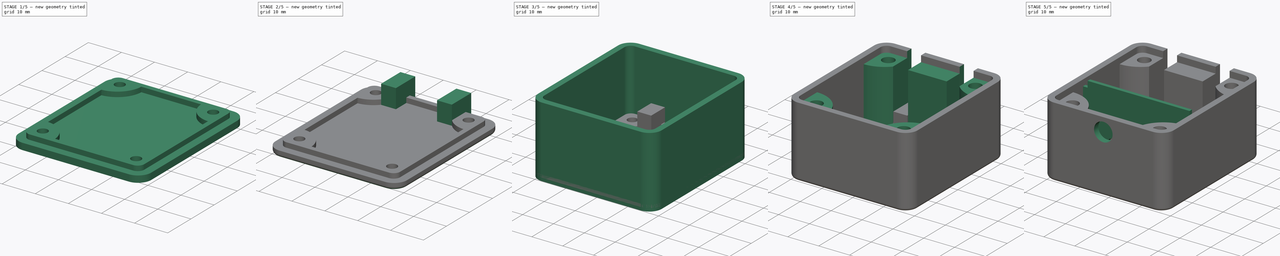
[diagram: build sequence overview — one tinted view per stage of 5, left to right]
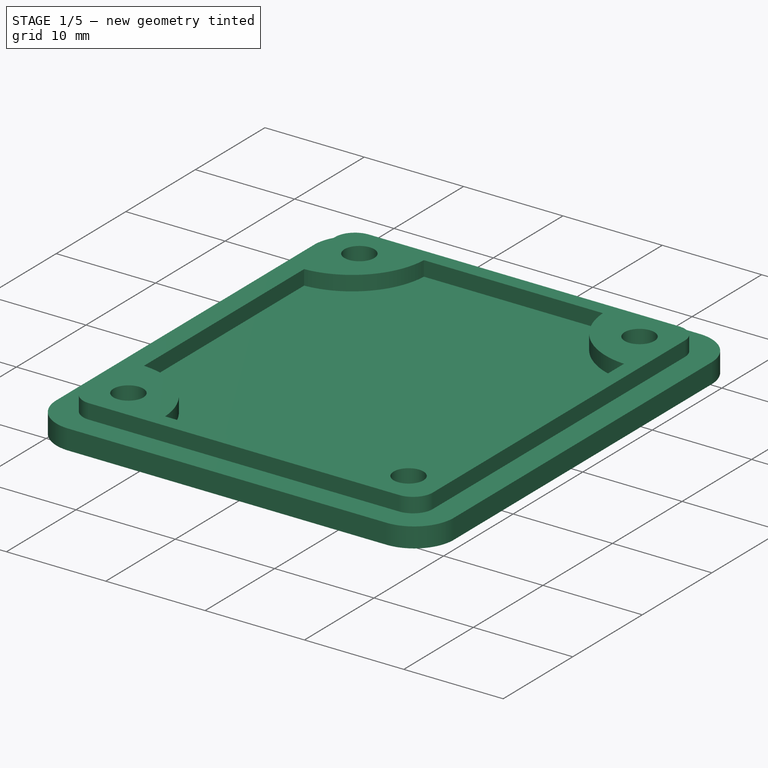
[diagram: stage 1 of 5 — iso view after this stage's code; geometry added in this stage tinted green]
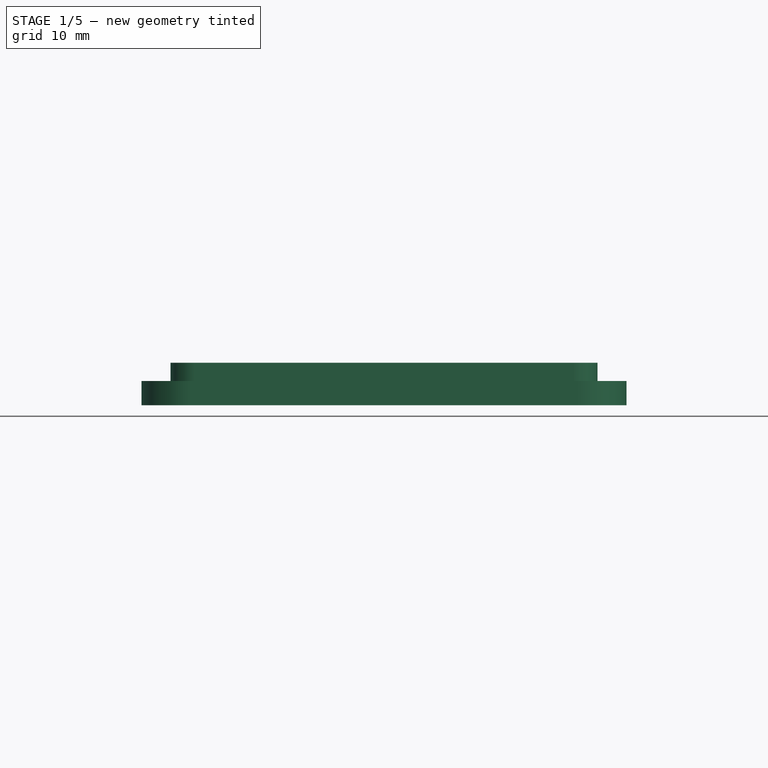
[diagram: stage 1 of 5 — front view after this stage's code; geometry added in this stage tinted green]
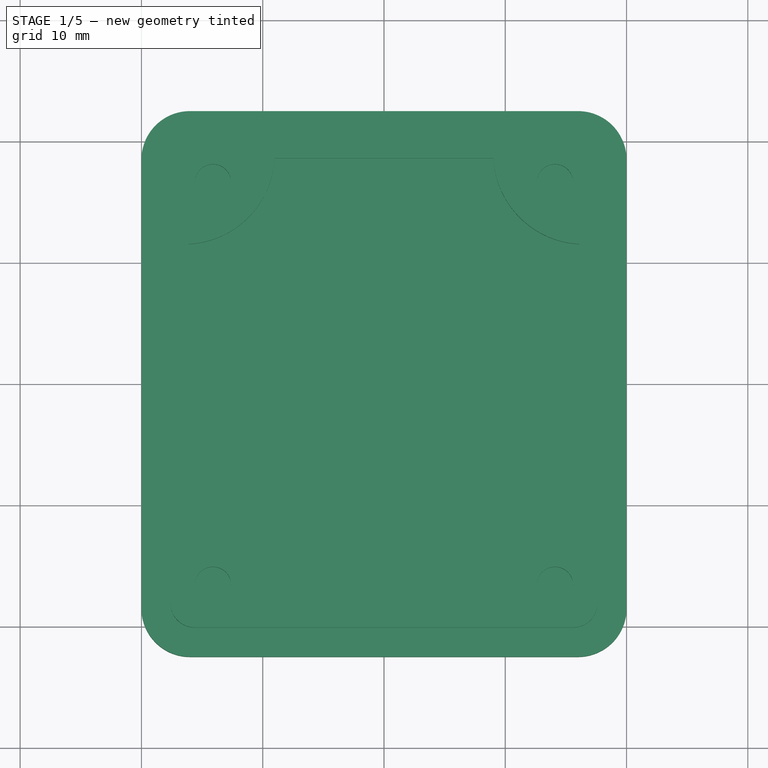
[diagram: stage 1 of 5 — top view after this stage's code; geometry added in this stage tinted green]
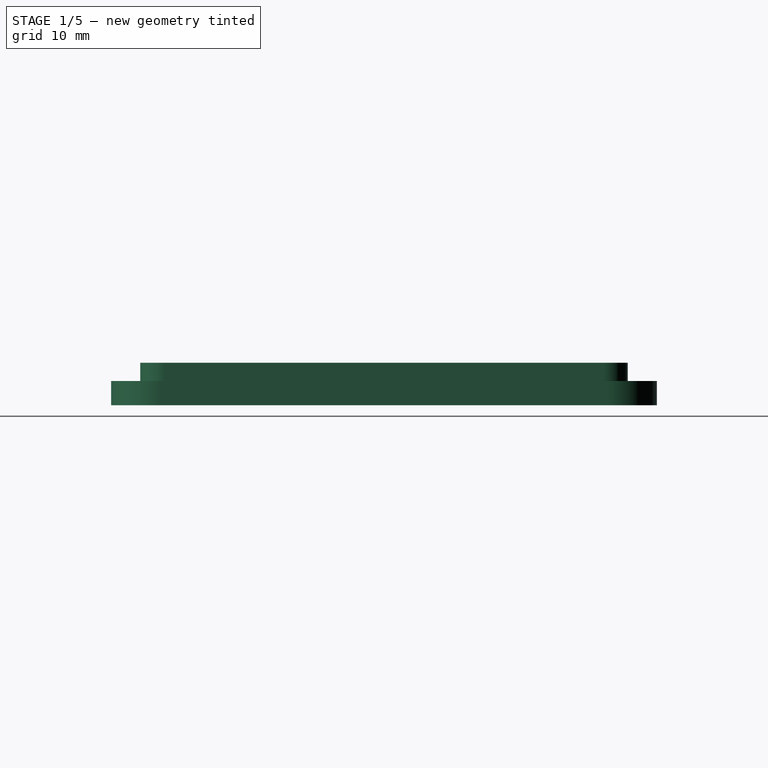
[diagram: stage 1 of 5 — right view after this stage's code; geometry added in this stage tinted green]
FCSTD DOCUMENT  (FreeCAD 0.21R33771 (Git))
Label: Project_Box_Simple_New
License: All rights reserved
LicenseURL: http://en.wikipedia.org/wiki/All_rights_reserved
objects: Sketcher::SketchObject×18, PartDesign::Pad×13, PartDesign::Pocket×7, PartDesign::Mirrored×6, PartDesign::MultiTransform×3, PartDesign::Body×3, App::Part×3, PartDesign::Fillet×2, Part::Part2DObjectPython×2, Spreadsheet::Sheet×1, PartDesign::Chamfer×1
note: 78 computed .brp shape members not serialized (recipe doc carries the construction recipe); baked Part::Feature solids carry a one-line shape summary decoded from their .brp

FEATURE [Sketcher::SketchObject] Sketch003  label="Main Lid Sketch"
  FullyConstrained = true
  MapMode = 5
  Support = -> [XY_Plane003]
  expr: Constraints[15] = <<p>>.box_outer_radius
  expr: Constraints[17] = <<p>>.box_outer_length / 2
  expr: Constraints[18] = <<p>>.box_outer_width / 2
  sketch-geometry (8):
    g0: LineSegment StartX=-16 StartY=22.5 StartZ=0 EndX=16 EndY=22.5 EndZ=0
    g1: LineSegment StartX=20 StartY=18.5 StartZ=0 EndX=20 EndY=-18.5 EndZ=0
    g2: LineSegment StartX=16 StartY=-22.5 StartZ=0 EndX=-16 EndY=-22.5 EndZ=0
    g3: LineSegment StartX=-20 StartY=-18.5 StartZ=0 EndX=-20 EndY=18.5 EndZ=0
    g4: ArcOfCircle CenterX=-16 CenterY=18.5 CenterZ=0 NormalX=0 NormalY=0 NormalZ=1 AngleXU=0 Radius=4 StartAngle=1.5708 EndAngle=3.14159
    g5: ArcOfCircle CenterX=16 CenterY=18.5 CenterZ=0 NormalX=0 NormalY=0 NormalZ=1 AngleXU=0 Radius=4 StartAngle=0 EndAngle=1.5708
    g6: ArcOfCircle CenterX=16 CenterY=-18.5 CenterZ=0 NormalX=0 NormalY=0 NormalZ=1 AngleXU=0 Radius=4 StartAngle=4.71239 EndAngle=6.28319
    g7: ArcOfCircle CenterX=-16 CenterY=-18.5 CenterZ=0 NormalX=0 NormalY=0 NormalZ=1 AngleXU=0 Radius=4 StartAngle=3.14159 EndAngle=4.71239
  constraints (19):
    c: Horizontal(g0)
    c: Horizontal(g2)
    c: Vertical(g1)
    c: Vertical(g3)
    c: Tangent(g0,g4) = 1.5708
    c: Tangent(g3,g4) = 1.5708
    c: Tangent(g0,g5) = 1.5708
    c: Tangent(g1,g5) = 1.5708
    c: Tangent(g1,g6) = 1.5708
    c: Tangent(g2,g6) = 1.5708
    c: Tangent(g2,g7) = 1.5708
    c: Tangent(g3,g7) = 1.5708
    c: Equal(g4,g5)
    c: Equal(g5,g6)
    c: Equal(g6,g7)
    c: Radius(g5) = 4
    c: Symmetric(g4,g6,g-1)
    c: DistanceY(g-1,g0) = 22.5
    c: DistanceX(g3,g-1) = 20
FEATURE [PartDesign::Pad] Pad002  label="Main Outer Lid"
  Direction = (0,0,1)
  Length = 2
  Length2 = 10
  Profile = -> Sketch003
  ReferenceAxis = -> Sketch003 [N_Axis]
  Type = 0
  expr: Length = <<p>>.box_wall_thickness
FEATURE [Sketcher::SketchObject] Sketch004  label="Main Inner Ring Sketch"
  FullyConstrained = true
  MapMode = 5
  Placement = pos=(0,0,2) rot=(0,0,1;0rad)
  Support = -> [Pad002]
  expr: Constraints[15] = <<p>>.box_inner_radius
  expr: Constraints[17] = <<p>>.box_inner_width / 2 - <<p>>.box_wall_clearance
  expr: Constraints[18] = <<p>>.box_inner_length / 2 - <<p>>.box_wall_clearance
  sketch-geometry (8):
    g0: LineSegment StartX=-15.6 StartY=20.1 StartZ=0 EndX=15.6 EndY=20.1 EndZ=0
    g1: LineSegment StartX=17.6 StartY=18.1 StartZ=0 EndX=17.6 EndY=-18.1 EndZ=0
    g2: LineSegment StartX=15.6 StartY=-20.1 StartZ=0 EndX=-15.6 EndY=-20.1 EndZ=0
    g3: LineSegment StartX=-17.6 StartY=-18.1 StartZ=0 EndX=-17.6 EndY=18.1 EndZ=0
    g4: ArcOfCircle CenterX=-15.6 CenterY=18.1 CenterZ=0 NormalX=0 NormalY=0 NormalZ=1 AngleXU=0 Radius=2 StartAngle=1.5708 EndAngle=3.14159
    g5: ArcOfCircle CenterX=15.6 CenterY=18.1 CenterZ=0 NormalX=0 NormalY=0 NormalZ=1 AngleXU=0 Radius=2 StartAngle=-2.7e-15 EndAngle=1.5708
    g6: ArcOfCircle CenterX=15.6 CenterY=-18.1 CenterZ=0 NormalX=0 NormalY=0 NormalZ=1 AngleXU=0 Radius=2 StartAngle=4.71239 EndAngle=6.28319
    g7: ArcOfCircle CenterX=-15.6 CenterY=-18.1 CenterZ=0 NormalX=0 NormalY=0 NormalZ=1 AngleXU=0 Radius=2 StartAngle=3.14159 EndAngle=4.71239
  constraints (19):
    c: Horizontal(g0)
    c: Horizontal(g2)
    c: Vertical(g1)
    c: Vertical(g3)
    c: Tangent(g3,g4) = 1.5708
    c: Tangent(g0,g4) = 1.5708
    c: Tangent(g0,g5) = 1.5708
    c: Tangent(g1,g5) = 1.5708
    c: Tangent(g1,g6) = 1.5708
    c: Tangent(g2,g6) = 1.5708
    c: Tangent(g2,g7) = 1.5708
    c: Tangent(g3,g7) = 1.5708
    c: Equal(g4,g5)
    c: Equal(g5,g6)
    c: Equal(g6,g7)
    c: Radius(g5) = 2
    c: Symmetric(g4,g6,g-1)
    c: DistanceX(g3,g-1) = 17.6
    c: DistanceY(g-1,g0) = 20.1
FEATURE [PartDesign::Pad] Pad003  label="Main Inner Ring"
  BaseFeature = -> Pad002
  Direction = (0,0,1)
  Length = 1.5
  Length2 = 10
  Profile = -> Sketch004
  ReferenceAxis = -> Sketch004 [N_Axis]
  Type = 0
  expr: Length = Spreadsheet.lid_ridge_size
FEATURE [Sketcher::SketchObject] Sketch005  label="Main Ring Pocket Sketch"
  FullyConstrained = true
  MapMode = 5
  Placement = pos=(0,0,3.5) rot=(0,0,1;0rad)
  Support = -> [Pad003]
  expr: Constraints[15] = <<p>>.box_inner_radius / 2
  expr: Constraints[17] = <<p>>.box_inner_length / 2 - <<p>>.box_wall_clearance - Spreadsheet.lid_ridge_size
  expr: Constraints[18] = <<p>>.box_inner_width / 2 - <<p>>.box_wall_clearance - Spreadsheet.lid_ridge_size
  sketch-geometry (8):
    g0: LineSegment StartX=-15.1 StartY=18.6 StartZ=0 EndX=15.1 EndY=18.6 EndZ=0
    g1: LineSegment StartX=16.1 StartY=17.6 StartZ=0 EndX=16.1 EndY=-17.6 EndZ=0
    g2: LineSegment StartX=15.1 StartY=-18.6 StartZ=0 EndX=-15.1 EndY=-18.6 EndZ=0
    g3: LineSegment StartX=-16.1 StartY=-17.6 StartZ=0 EndX=-16.1 EndY=17.6 EndZ=0
    g4: ArcOfCircle CenterX=-15.1 CenterY=17.6 CenterZ=0 NormalX=0 NormalY=0 NormalZ=1 AngleXU=0 Radius=1 StartAngle=1.5708 EndAngle=3.14159
    g5: ArcOfCircle CenterX=15.1 CenterY=17.6 CenterZ=0 NormalX=0 NormalY=0 NormalZ=1 AngleXU=0 Radius=1 StartAngle=0 EndAngle=1.5708
    g6: ArcOfCircle CenterX=15.1 CenterY=-17.6 CenterZ=0 NormalX=0 NormalY=0 NormalZ=1 AngleXU=0 Radius=1 StartAngle=4.71239 EndAngle=6.28319
    g7: ArcOfCircle CenterX=-15.1 CenterY=-17.6 CenterZ=0 NormalX=0 NormalY=0 NormalZ=1 AngleXU=0 Radius=1 StartAngle=3.14159 EndAngle=4.71239
  constraints (19):
    c: Horizontal(g0)
    c: Horizontal(g2)
    c: Vertical(g1)
    c: Vertical(g3)
    c: Tangent(g3,g4) = 1.5708
    c: Tangent(g0,g4) = 1.5708
    c: Tangent(g0,g5) = 1.5708
    c: Tangent(g1,g5) = 1.5708
    c: Tangent(g1,g6) = 1.5708
    c: Tangent(g2,g6) = 1.5708
    c: Tangent(g2,g7) = 1.5708
    c: Tangent(g3,g7) = 1.5708
    c: Equal(g4,g5)
    c: Equal(g5,g6)
    c: Equal(g6,g7)
    c: Radius(g5) = 1
    c: Symmetric(g4,g6,g-1)
    c: DistanceY(g-1,g0) = 18.6
    c: DistanceX(g3,g-1) = 16.1
FEATURE [PartDesign::Pocket] Pocket001  label="Main Ring Pocket"
  BaseFeature = -> Pad003
  Direction = (0,0,-1)
  Length = 1.5
  Length2 = 5
  Profile = -> Sketch005
  ReferenceAxis = -> Sketch005 [N_Axis]
  Type = 0
  expr: Length = <<p>>.lid_ridge_size
FEATURE [Sketcher::SketchObject] Sketch006  label="Main Ring Lug Sketch"
  FullyConstrained = true
  MapMode = 5
  Placement = pos=(0,0,2) rot=(0,0,1;0rad)
  Support = -> [Pocket001]
  expr: Constraints[0] = <<p>>.lid_screw_diameter
  expr: Constraints[10] = <<p>>.box_inner_width / 2 - <<p>>.box_inner_width / 2 - <<p>>.lid_ridge_size + <<p>>.lug_insert_diameter
  expr: Constraints[11] = <<p>>.box_inner_length / 2 - <<p>>.box_inner_length / 2 - <<p>>.lid_ridge_size + <<p>>.lug_insert_diameter
  expr: Constraints[7] = <<p>>.lid_screw_diameter * 2.5
  expr: Constraints[8] = <<p>>.box_inner_length / 2 - <<p>>.lid_ridge_size
  expr: Constraints[9] = <<p>>.box_inner_width / 2 - <<p>>.lid_ridge_size
  sketch-geometry (4):
    g0: Circle CenterX=-14.1 CenterY=16.6 CenterZ=0 NormalX=0 NormalY=0 NormalZ=1 AngleXU=0 Radius=1.5
    g1: LineSegment StartX=-16.5 StartY=11.5 StartZ=0 EndX=-16.5 EndY=19 EndZ=0
    g2: LineSegment StartX=-16.5 StartY=19 StartZ=0 EndX=-9 EndY=19 EndZ=0
    g3: ArcOfCircle CenterX=-16.5 CenterY=19 CenterZ=0 NormalX=0 NormalY=0 NormalZ=1 AngleXU=0 Radius=7.5 StartAngle=4.71239 EndAngle=6.28319
  constraints (12):
    c: Diameter(g0) = 3
    c: Vertical(g1)
    c: Coincident(g1,g2)
    c: Horizontal(g2)
    c: Coincident(g3,g1)
    c: Coincident(g3,g2)
    c: Coincident(g3,g1)
    c: Radius(g3) = 7.5
    c: DistanceY(g-1,g1) = 19
    c: DistanceX(g1,g-1) = 16.5
    c: DistanceX(g1,g0) = 2.4
    c: DistanceY(g0,g1) = 2.4
FEATURE [PartDesign::Pad] Pad004  label="Main Ring Lug"
  BaseFeature = -> Pocket001
  Direction = (0,0,1)
  Length = 1.5
  Length2 = 10
  Profile = -> Sketch006
  ReferenceAxis = -> Sketch006 [N_Axis]
  Type = 0
  expr: Length = <<p>>.lid_ridge_size
FEATURE [PartDesign::Mirrored] Mirrored002
  MirrorPlane = -> Sketch006 [V_Axis]
FEATURE [PartDesign::Mirrored] Mirrored003
  MirrorPlane = -> Sketch006 [H_Axis]
FEATURE [PartDesign::MultiTransform] MultiTransform001  label="Ring Lugs Mirror"
  BaseFeature = -> Pad004
  Originals = -> [Pad004]
  Transformations = -> [Mirrored002,Mirrored003]
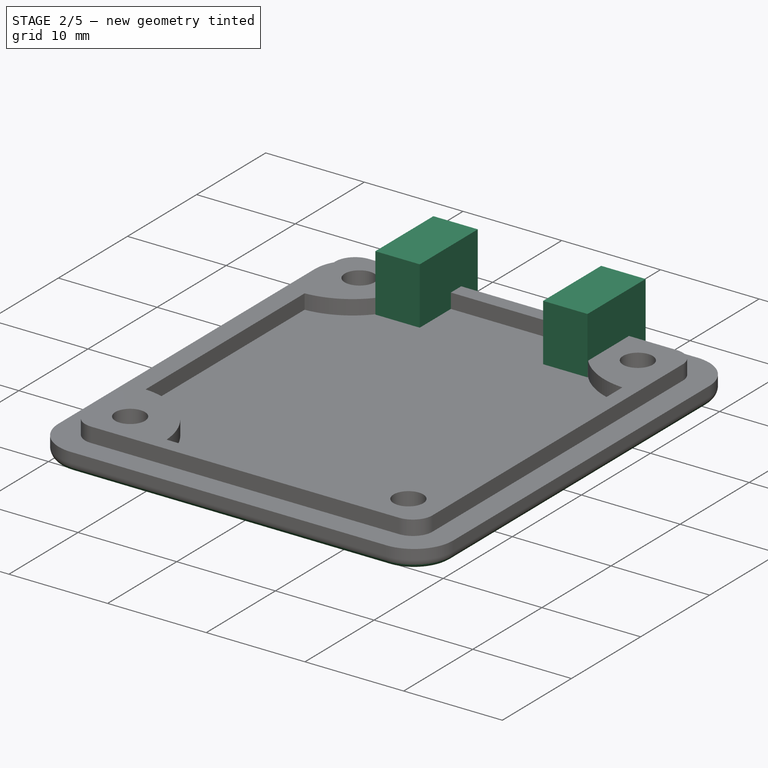
[diagram: stage 2 of 5 — iso view after this stage's code; geometry added in this stage tinted green]
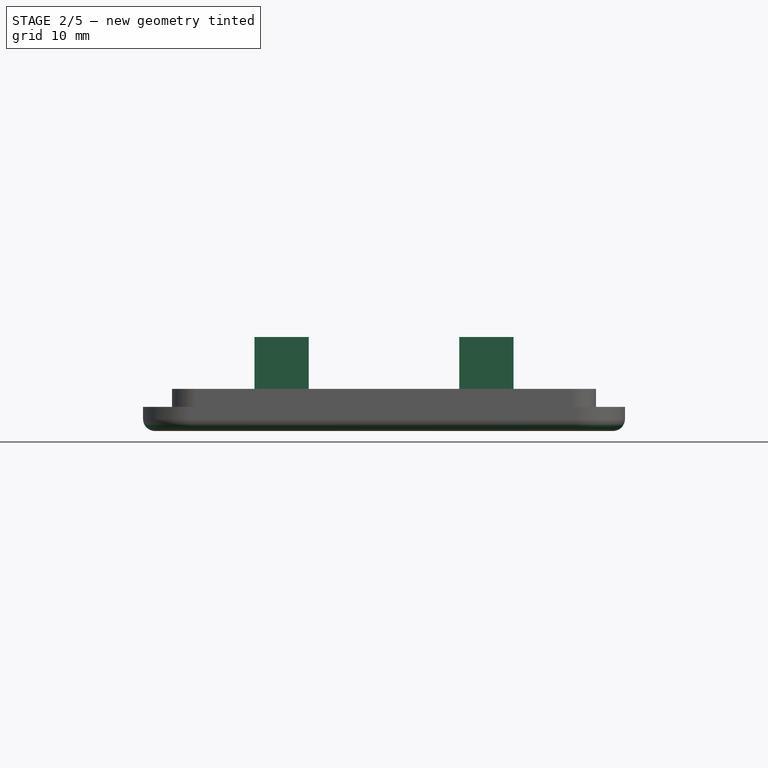
[diagram: stage 2 of 5 — front view after this stage's code; geometry added in this stage tinted green]
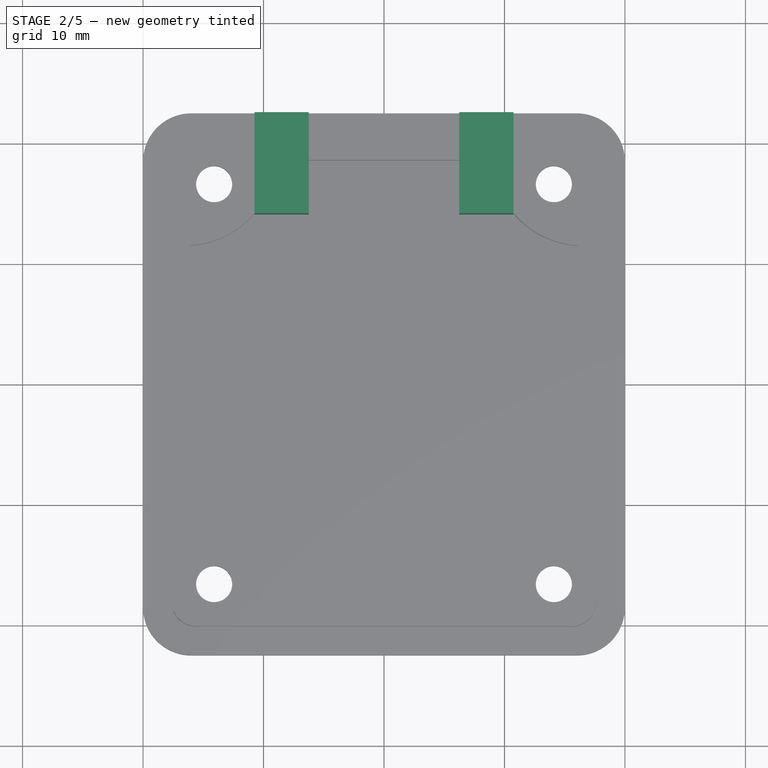
[diagram: stage 2 of 5 — top view after this stage's code; geometry added in this stage tinted green]
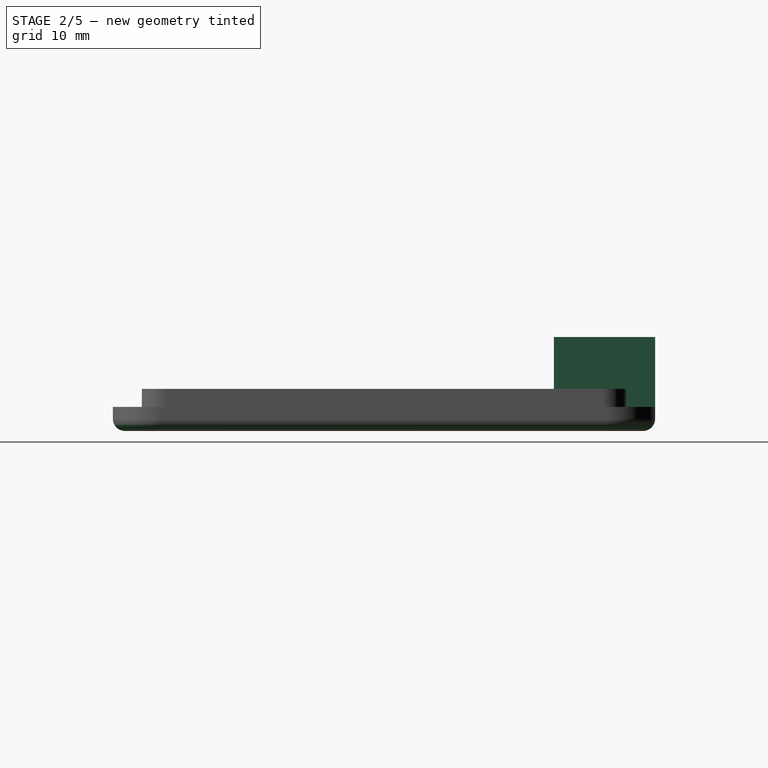
[diagram: stage 2 of 5 — right view after this stage's code; geometry added in this stage tinted green]
FEATURE [Sketcher::SketchObject] Sketch007  label="Lid Hole Sketch"
  FullyConstrained = true
  MapMode = 5
  Placement = pos=(0,0,2) rot=(0,0,1;0rad)
  Support = -> [MultiTransform001]
  expr: Constraints[0] = <<p>>.lid_screw_diameter
  expr: Constraints[1] = <<p>>.box_inner_width / 2 - <<p>>.lug_insert_diameter
  expr: Constraints[2] = <<p>>.box_inner_length / 2 - <<p>>.lug_insert_diameter
  sketch-geometry (1):
    g0: Circle CenterX=-14.1 CenterY=16.6 CenterZ=0 NormalX=0 NormalY=0 NormalZ=1 AngleXU=0 Radius=1.5
  constraints (3):
    c: Diameter(g0) = 3
    c: DistanceX(g0,g-1) = 14.1
    c: DistanceY(g-1,g0) = 16.6
FEATURE [PartDesign::Pocket] Pocket002  label="Lid Hole"
  BaseFeature = -> MultiTransform001
  Direction = (0,0,-1)
  Length = 2
  Length2 = 5
  Profile = -> Sketch007
  ReferenceAxis = -> Sketch007 [N_Axis]
  Type = 0
  expr: Length = <<p>>.box_wall_thickness
FEATURE [PartDesign::Mirrored] Mirrored004
  MirrorPlane = -> Sketch007 [V_Axis]
FEATURE [PartDesign::Mirrored] Mirrored005
  MirrorPlane = -> Sketch007 [H_Axis]
FEATURE [PartDesign::MultiTransform] MultiTransform002  label="Lid Holes Mirror"
  BaseFeature = -> Pocket002
  Originals = -> [Pocket002]
  Transformations = -> [Mirrored004,Mirrored005]
FEATURE [PartDesign::Fillet] Fillet001
  Base = -> MultiTransform002 [Edge15,Edge14,Edge12,Edge9,Edge3,Edge6,Edge11,Edge13]
  BaseFeature = -> MultiTransform002
  Radius = 1
  SupportTransform = false
  UseAllEdges = false
  expr: Radius = <<p>>.face_fillet
FEATURE [PartDesign::Chamfer] Chamfer
  Angle = 45
  Base = -> Fillet001 [Edge40,Edge39,Edge37,Edge38]
  BaseFeature = -> Fillet001
  ChamferType = 0
  FlipDirection = false
  Size = 1.98
  Size2 = 1
  SupportTransform = false
  UseAllEdges = false
  expr: Size = <<p>>.lid_screw_chamfer
FEATURE [PartDesign::Body] Body  label="Main Box"
  Group = -> [Sketch,Pad,Sketch001,Pocket,Sketch002,Pad001,MultiTransform,Mirrored,Mirrored001,Fillet,Sketch008,Pad005,Sketch009,Pocket003,Sketch010,Pad006,Sketch011,Pad007,Sketch012,Pocket004,Sketch013,Pocket005,Sketch014,Pad008]
  Origin = -> Origin001
  Placement = pos=(-48.65,0,0) rot=(0,0,1;0rad)
  Tip = -> Pad008
FEATURE [App::Part] Part  label="Box"
  Group = -> [Body]
  Origin = -> Origin
FEATURE [Sketcher::SketchObject] Sketch015
  FullyConstrained = true
  MapMode = 5
  Placement = pos=(0,0,2) rot=(0,0,1;0rad)
  Support = -> [Chamfer]
  expr: Constraints[16] = <<p>>.key_thickness
  expr: Constraints[17] = <<p>>.key_thickness
  expr: Constraints[18] = <<p>>.key_spread
  sketch-geometry (8):
    g0: LineSegment StartX=-10.75 StartY=22.5 StartZ=0 EndX=-6.25 EndY=22.5 EndZ=0
    g1: LineSegment StartX=-6.25 StartY=22.5 StartZ=0 EndX=-6.25 EndY=14.1 EndZ=0
    g2: LineSegment StartX=-6.25 StartY=14.1 StartZ=0 EndX=-10.75 EndY=14.1 EndZ=0
    g3: LineSegment StartX=-10.75 StartY=14.1 StartZ=0 EndX=-10.75 EndY=22.5 EndZ=0
    g4: LineSegment StartX=6.25 StartY=22.5 StartZ=0 EndX=10.75 EndY=22.5 EndZ=0
    g5: LineSegment StartX=10.75 StartY=22.5 StartZ=0 EndX=10.75 EndY=14.1 EndZ=0
    g6: LineSegment StartX=10.75 StartY=14.1 StartZ=0 EndX=6.25 EndY=14.1 EndZ=0
    g7: LineSegment StartX=6.25 StartY=14.1 StartZ=0 EndX=6.25 EndY=22.5 EndZ=0
  constraints (24):
    c: Coincident(g0,g1)
    c: Coincident(g1,g2)
    c: Coincident(g2,g3)
    c: Coincident(g3,g0)
    c: Horizontal(g0)
    c: Horizontal(g2)
    c: Vertical(g1)
    c: Vertical(g3)
    c: Coincident(g4,g5)
    c: Coincident(g5,g6)
    c: Coincident(g6,g7)
    c: Coincident(g7,g4)
    c: Horizontal(g4)
    c: Horizontal(g6)
    c: Vertical(g5)
    c: Vertical(g7)
    c: DistanceX(g4,g4) = 4.5
    c: DistanceX(g0,g0) = 4.5
    c: DistanceX(g0,g4) = 17
    c: DistanceX(g1,g-1) = 6.25
    c: DistanceY(g7,g7) = 8.4
    c: DistanceY(g-1,g6) = 14.1
    c: DistanceY(g-1,g1) = 14.1
    c: DistanceY(g1,g1) = 8.4
FEATURE [PartDesign::Pad] Pad009
  BaseFeature = -> Chamfer
  Direction = (0,0,1)
  Length = 5.8
  Length2 = 10
  Profile = -> Sketch015
  ReferenceAxis = -> Sketch015 [N_Axis]
  Type = 0
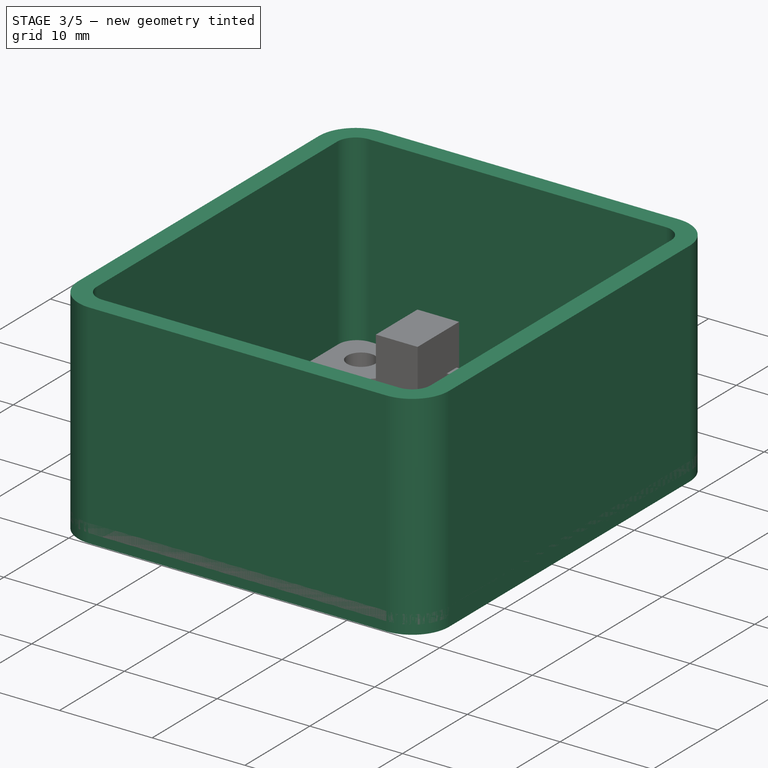
[diagram: stage 3 of 5 — iso view after this stage's code; geometry added in this stage tinted green]
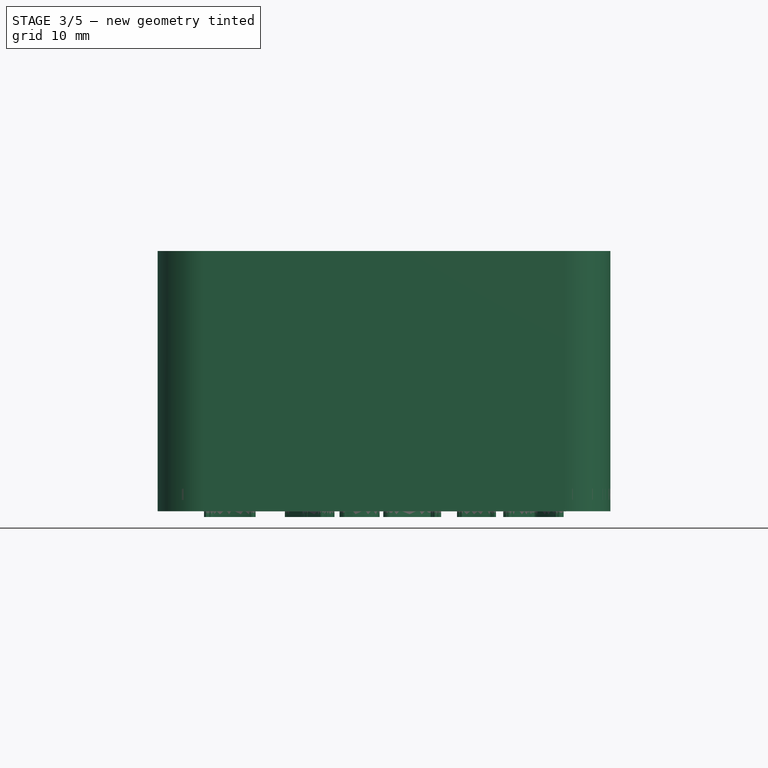
[diagram: stage 3 of 5 — front view after this stage's code; geometry added in this stage tinted green]
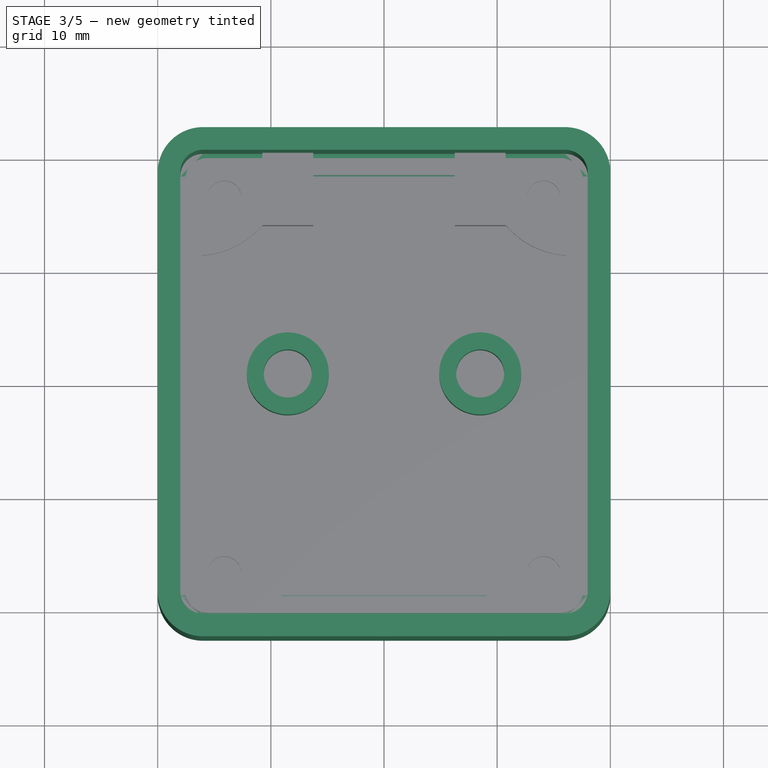
[diagram: stage 3 of 5 — top view after this stage's code; geometry added in this stage tinted green]
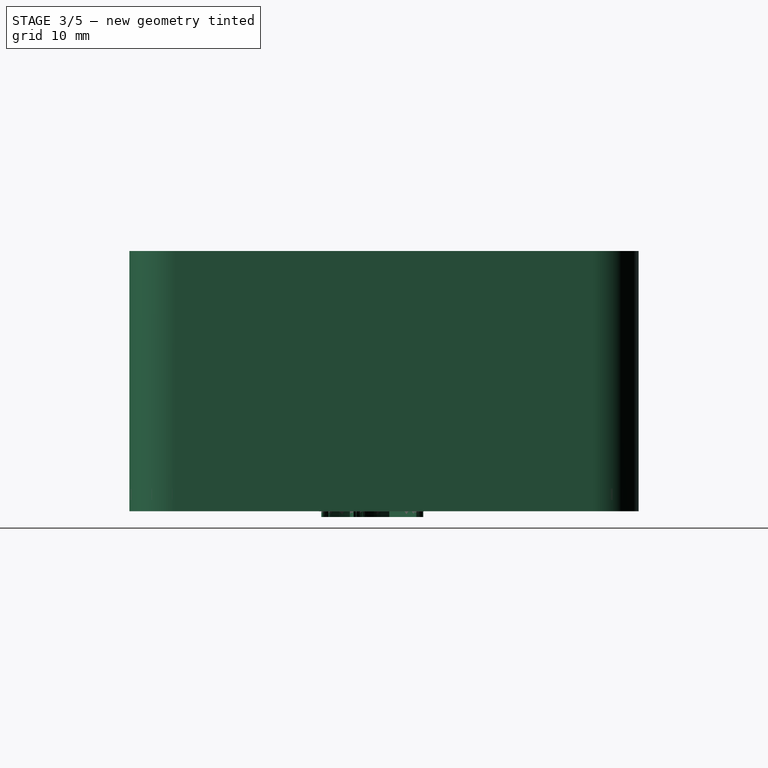
[diagram: stage 3 of 5 — right view after this stage's code; geometry added in this stage tinted green]
FEATURE [Spreadsheet::Sheet] Spreadsheet  label="p"
  cells = A1='box_outer_width; B1(box_outer_width)=40; A2='box_outer_length; B2(box_outer_length)=45; A3='box_outer_depth; B3(box_outer_depth)=23; A5='box_inner_width; B5(box_inner_width)==B1 - B12 * 2; C5='Calculated; A6='box_inner_length; B6(box_inner_length)==B2 - B12 * 2; C6='Calculated; A7='box_inner_depth; B7(box_inner_depth)==B3 - B12; C7='Calculated; A9='box_outer_radius; B9(box_outer_radius)==B12 + 2; C9='Calculated; A10='box_inner_radius; B10(box_inner_radius)==B9 / 2; C10='Calculated; A12='box_wall_thickness; B12(box_wall_thickness)=2; A13='box_wall_clearance; B13(box_wall_clearance)==B12 * 0.2; C13='Calculated 20%; A15='lug_insert_diameter; B15(lug_insert_diameter)=3.9; A16='lug_depth; B16(lug_depth)==B7 - B12; A17='lug_outer_radius; B17(lug_outer_radius)==B15 * 2.5; A19='face_fillet; B19(face_fillet)=1; A21='lid_ridge_size; B21(lid_ridge_size)=1.5; A22='lid_screw_diameter; B22(lid_screw_diameter)=3; A23='lid_screw_chamfer; B23(lid_screw_chamfer)=1.98; A25='key_spread; B25(key_spread)=17; A26='key_thickness; B26(key_thickness)=4.5; A27='key_stem_length; B27(key_stem_length)=10.1; A28='key_lock_diameter; B28(key_lock_diameter)=4.25; A29='key_lock_recess; B29(key_lock_recess)=21.5; A30='key_lock_depth; B30(key_lock_depth)=0.7
FEATURE [Sketcher::SketchObject] Sketch  label="Main Body Sketch"
  FullyConstrained = true
  MapMode = 5
  Support = -> [XY_Plane001]
  expr: Constraints[16] = <<p>>.box_outer_radius
  expr: Constraints[17] = <<p>>.box_outer_width / 2
  expr: Constraints[18] = <<p>>.box_outer_length / 2
  sketch-geometry (8):
    g0: LineSegment StartX=-16 StartY=22.5 StartZ=0 EndX=16 EndY=22.5 EndZ=0
    g1: LineSegment StartX=20 StartY=18.5 StartZ=0 EndX=20 EndY=-18.5 EndZ=0
    g2: LineSegment StartX=16 StartY=-22.5 StartZ=0 EndX=-16 EndY=-22.5 EndZ=0
    g3: LineSegment StartX=-20 StartY=-18.5 StartZ=0 EndX=-20 EndY=18.5 EndZ=0
    g4: ArcOfCircle CenterX=-16 CenterY=18.5 CenterZ=0 NormalX=0 NormalY=0 NormalZ=1 AngleXU=0 Radius=4 StartAngle=1.5708 EndAngle=3.14159
    g5: ArcOfCircle CenterX=16 CenterY=18.5 CenterZ=0 NormalX=0 NormalY=0 NormalZ=1 AngleXU=0 Radius=4 StartAngle=0 EndAngle=1.5708
    g6: ArcOfCircle CenterX=16 CenterY=-18.5 CenterZ=0 NormalX=0 NormalY=0 NormalZ=1 AngleXU=0 Radius=4 StartAngle=4.71239 EndAngle=6.28319
    g7: ArcOfCircle CenterX=-16 CenterY=-18.5 CenterZ=0 NormalX=0 NormalY=0 NormalZ=1 AngleXU=0 Radius=4 StartAngle=3.14159 EndAngle=4.71239
  constraints (19):
    c: Horizontal(g0)
    c: Horizontal(g2)
    c: Vertical(g1)
    c: Vertical(g3)
    c: Tangent(g3,g4) = 1.5708
    c: Tangent(g0,g4) = 1.5708
    c: Tangent(g0,g5) = 1.5708
    c: Tangent(g1,g5) = 1.5708
    c: Tangent(g1,g6) = 1.5708
    c: Tangent(g2,g6) = 1.5708
    c: Tangent(g2,g7) = 1.5708
    c: Tangent(g3,g7) = 1.5708
    c: Symmetric(g5,g7,g-1)
    c: Equal(g6,g7)
    c: Equal(g7,g4)
    c: Equal(g4,g5)
    c: Radius(g5) = 4
    c: DistanceX(g3,g-1) = 20
    c: DistanceY(g-1,g0) = 22.5
FEATURE [PartDesign::Pad] Pad  label="Box Outer Body"
  Direction = (0,0,1)
  Length = 23
  Length2 = 10
  Profile = -> Sketch
  ReferenceAxis = -> Sketch [N_Axis]
  Type = 0
  expr: Length = <<p>>.box_outer_depth
FEATURE [Sketcher::SketchObject] Sketch001  label="Inner Body Sketch"
  FullyConstrained = true
  MapMode = 5
  Placement = pos=(0,0,23) rot=(0,0,1;0rad)
  Support = -> [Pad]
  expr: Constraints[16] = <<p>>.box_inner_width / 2
  expr: Constraints[17] = <<p>>.box_inner_length / 2
  expr: Constraints[18] = <<p>>.box_inner_radius
  sketch-geometry (8):
    g0: LineSegment StartX=-16 StartY=20.5 StartZ=0 EndX=16 EndY=20.5 EndZ=0
    g1: LineSegment StartX=18 StartY=18.5 StartZ=0 EndX=18 EndY=-18.5 EndZ=0
    g2: LineSegment StartX=16 StartY=-20.5 StartZ=0 EndX=-16 EndY=-20.5 EndZ=0
    g3: LineSegment StartX=-18 StartY=-18.5 StartZ=0 EndX=-18 EndY=18.5 EndZ=0
    g4: ArcOfCircle CenterX=-16 CenterY=18.5 CenterZ=0 NormalX=0 NormalY=0 NormalZ=1 AngleXU=0 Radius=2 StartAngle=1.5708 EndAngle=3.14159
    g5: ArcOfCircle CenterX=16 CenterY=18.5 CenterZ=0 NormalX=0 NormalY=0 NormalZ=1 AngleXU=0 Radius=2 StartAngle=0 EndAngle=1.5708
    g6: ArcOfCircle CenterX=16 CenterY=-18.5 CenterZ=0 NormalX=0 NormalY=0 NormalZ=1 AngleXU=0 Radius=2 StartAngle=4.71239 EndAngle=6.28319
    g7: ArcOfCircle CenterX=-16 CenterY=-18.5 CenterZ=0 NormalX=0 NormalY=0 NormalZ=1 AngleXU=0 Radius=2 StartAngle=3.14159 EndAngle=4.71239
  constraints (19):
    c: Horizontal(g0)
    c: Horizontal(g2)
    c: Vertical(g1)
    c: Vertical(g3)
    c: Tangent(g3,g4) = 1.5708
    c: Tangent(g0,g4) = 1.5708
    c: Tangent(g0,g5) = 1.5708
    c: Tangent(g1,g5) = 1.5708
    c: Tangent(g1,g6) = 1.5708
    c: Tangent(g2,g6) = 1.5708
    c: Tangent(g2,g7) = 1.5708
    c: Tangent(g3,g7) = 1.5708
    c: Equal(g4,g5)
    c: Equal(g5,g6)
    c: Equal(g6,g7)
    c: Symmetric(g5,g7,g-1)
    c: DistanceX(g3,g-1) = 18
    c: DistanceY(g-1,g0) = 20.5
    c: Radius(g5) = 2
FEATURE [PartDesign::Pocket] Pocket  label="Box Inner Pocket"
  BaseFeature = -> Pad
  Direction = (0,0,-1)
  Length = 21
  Length2 = 5
  Profile = -> Sketch001
  ReferenceAxis = -> Sketch001 [N_Axis]
  Type = 0
  expr: Length = <<p>>.box_inner_depth
FEATURE [Part::Part2DObjectPython] ShapeString  # Draft 2D object (typed FeaturePython)
  FontFile = <path>
  MakeFace = true
  Placement = pos=(16.11,-2.91554,0) rot=(0,1,0;3.14159rad)
  Size = 8
  String = X-Key 2
  Tracking = 0
FEATURE [PartDesign::Pocket] Pocket006
  BaseFeature = -> Pad009
  Direction = (0,0,1)
  Length = 0.5
  Length2 = 5
  Profile = -> ShapeString
  ReferenceAxis = -> ShapeString [N_Axis]
  Type = 0
FEATURE [Sketcher::SketchObject] Sketch016
  FullyConstrained = true
  MapMode = 5
  Support = -> [XY_Plane005]
  sketch-geometry (4):
    g0: LineSegment StartX=-16 StartY=-5.71 StartZ=0 EndX=16.1 EndY=-5.71 EndZ=0
    g1: LineSegment StartX=16.1 StartY=-5.71 StartZ=0 EndX=16.1 EndY=3.57 EndZ=0
    g2: LineSegment StartX=16.1 StartY=3.57 StartZ=0 EndX=-16 EndY=3.57 EndZ=0
    g3: LineSegment StartX=-16 StartY=3.57 StartZ=0 EndX=-16 EndY=-5.71 EndZ=0
  constraints (12):
    c: Coincident(g0,g1)
    c: Coincident(g1,g2)
    c: Coincident(g2,g3)
    c: Coincident(g3,g0)
    c: Horizontal(g0)
    c: Horizontal(g2)
    c: Vertical(g1)
    c: Vertical(g3)
    c: DistanceX(g2,g2) = 32.1
    c: DistanceX(g2,g-1) = 16
    c: DistanceY(g1,g1) = 9.28
    c: DistanceY(g0,g-1) = 5.71
FEATURE [PartDesign::Pad] Pad010
  Direction = (0,0,1)
  Length = 0.015
  Length2 = 10
  Profile = -> Sketch016
  ReferenceAxis = -> Sketch016 [N_Axis]
  Reversed = true
  Type = 0
FEATURE [Part::Part2DObjectPython] ShapeString001  # Draft 2D object (typed FeaturePython)
  FontFile = <path>
  MakeFace = true
  Placement = pos=(16.09,-2.86,-0.015) rot=(0,1,0;3.14159rad)
  Size = 8
  String = X-Key 2
  Tracking = 0
FEATURE [PartDesign::Pad] Pad011
  BaseFeature = -> Pad010
  Direction = (0,0,-1)
  Length = 0.5
  Length2 = 10
  Profile = -> ShapeString001
  ReferenceAxis = -> ShapeString001 [N_Axis]
  Type = 0
FEATURE [PartDesign::Body] Body002  label="LogoBody"
  Group = -> [Sketch016,Pad010,ShapeString001,Pad011]
  Origin = -> Origin005
  Tip = -> Pad011
FEATURE [App::Part] Part002  label="LogoPart"
  Group = -> [Body002]
  Origin = -> Origin004
FEATURE [Sketcher::SketchObject] Sketch017
  FullyConstrained = true
  MapMode = 5
  Placement = pos=(0,0,2) rot=(0,0,1;0rad)
  Support = -> [Pocket006]
  expr: Constraints[3] = <<p>>.key_lock_diameter
  expr: Constraints[5] = <<p>>.key_lock_diameter + 3
  expr: Constraints[6] = <<p>>.key_spread
  expr: Constraints[7] = <<p>>.key_spread / 2
  expr: Constraints[9] = <<p>>.box_outer_length / 2 - <<p>>.key_lock_recess
  sketch-geometry (4):
    g0: Circle CenterX=-8.5 CenterY=1 CenterZ=0 NormalX=0 NormalY=0 NormalZ=1 AngleXU=0 Radius=2.125
    g1: Circle CenterX=-8.5 CenterY=1 CenterZ=0 NormalX=0 NormalY=0 NormalZ=1 AngleXU=0 Radius=3.625
    g2: Circle CenterX=8.5 CenterY=1 CenterZ=0 NormalX=0 NormalY=0 NormalZ=1 AngleXU=0 Radius=2.125
    g3: Circle CenterX=8.5 CenterY=1 CenterZ=0 NormalX=0 NormalY=0 NormalZ=1 AngleXU=0 Radius=3.625
  constraints (10):
    c: Coincident(g1,g0)
    c: Coincident(g3,g2)
    c: Equal(g0,g2)
    c: Diameter(g0) = 4.25
    c: Equal(g1,g3)
    c: Diameter(g1) = 7.25
    c: DistanceX(g0,g2) = 17
    c: DistanceX(g0,g-1) = 8.5
    c: DistanceY(g0,g2) = 0
    c: DistanceY(g-1,g2) = 1
FEATURE [PartDesign::Pad] Pad012
  BaseFeature = -> Pocket006
  Direction = (0,0,1)
  Length = 5.6
  Length2 = 10
  Profile = -> Sketch017
  ReferenceAxis = -> Sketch017 [N_Axis]
  Type = 0
FEATURE [PartDesign::Body] Body001  label="Main Lid"
  Group = -> [Sketch003,Pad002,Sketch004,Pad003,Sketch005,Pocket001,Sketch006,Pad004,MultiTransform001,Mirrored002,Mirrored003,Sketch007,Pocket002,MultiTransform002,Mirrored004,Mirrored005,Fillet001,Chamfer,Sketch015,Pad009,ShapeString,Pocket006,Sketch017,Pad012]
  Origin = -> Origin003
  Tip = -> Pad012
FEATURE [App::Part] Part001  label="Lid"
  Group = -> [Body001]
  Origin = -> Origin002
note: 2 file-system paths scrubbed to <path> (originals preserved in the JSON sidecar)
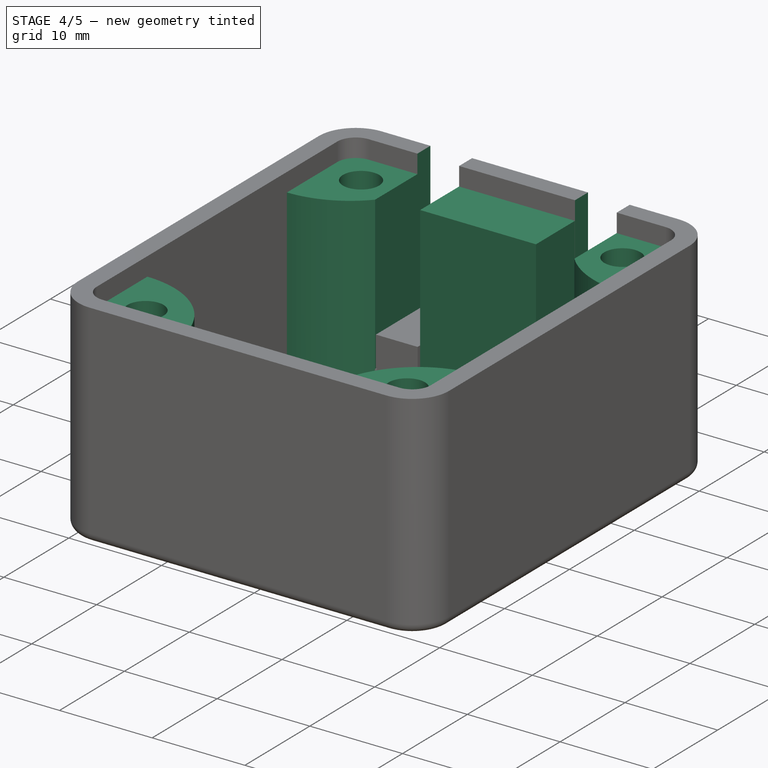
[diagram: stage 4 of 5 — iso view after this stage's code; geometry added in this stage tinted green]
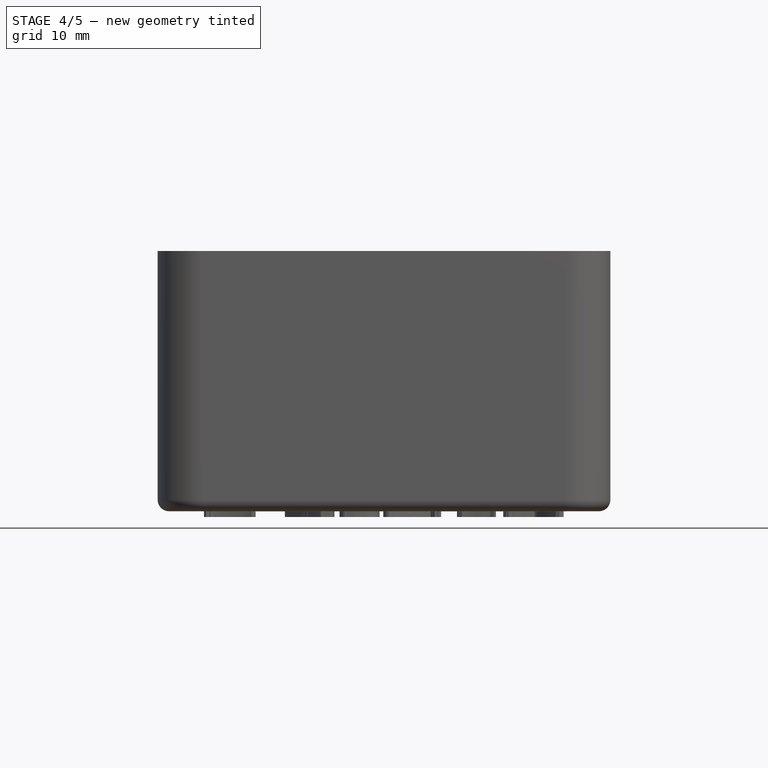
[diagram: stage 4 of 5 — front view after this stage's code; geometry added in this stage tinted green]
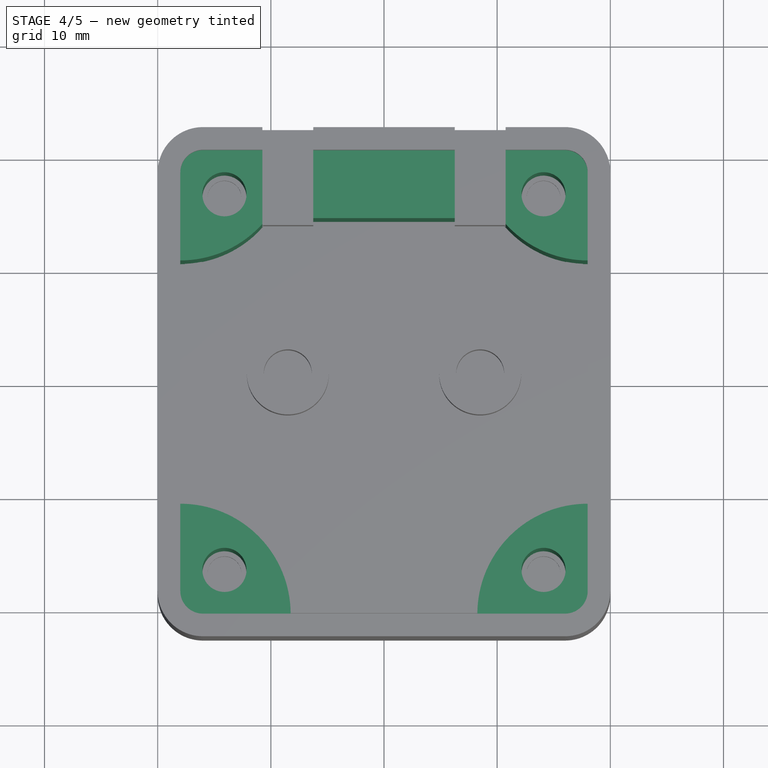
[diagram: stage 4 of 5 — top view after this stage's code; geometry added in this stage tinted green]
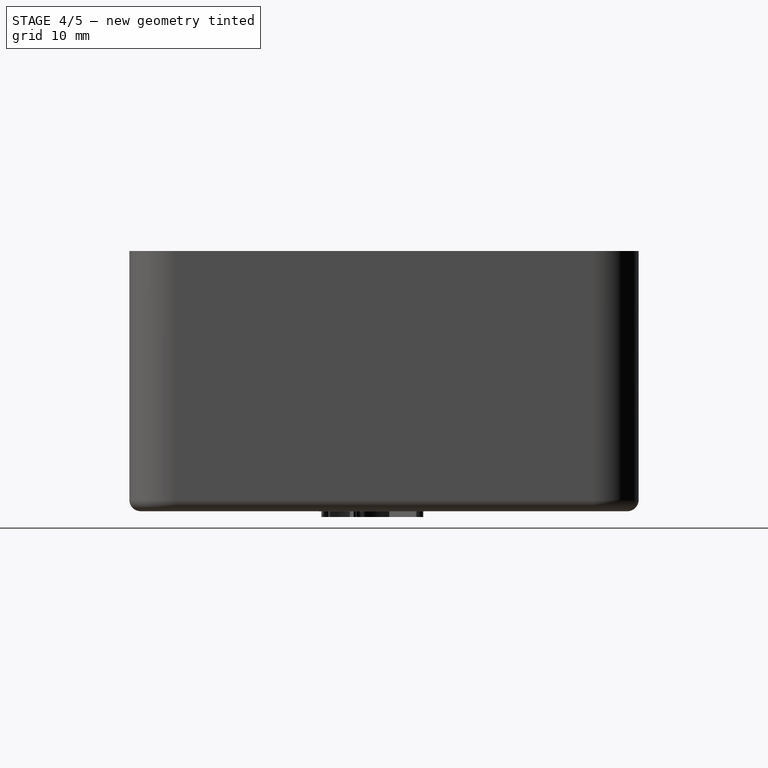
[diagram: stage 4 of 5 — right view after this stage's code; geometry added in this stage tinted green]
FEATURE [Sketcher::SketchObject] Sketch002  label="Lug Sketch"
  FullyConstrained = true
  MapMode = 5
  Placement = pos=(0,0,2) rot=(0,0,1;0rad)
  Support = -> [Pocket]
  expr: Constraints[10] = <<p>>.lug_insert_diameter
  expr: Constraints[11] = <<p>>.lug_insert_diameter
  expr: Constraints[6] = <<p>>.lug_outer_radius
  expr: Constraints[7] = <<p>>.box_inner_width / 2
  expr: Constraints[8] = <<p>>.box_inner_length / 2
  expr: Constraints[9] = <<p>>.lug_insert_diameter
  sketch-geometry (4):
    g0: LineSegment StartX=-18 StartY=10.75 StartZ=0 EndX=-18 EndY=20.5 EndZ=0
    g1: LineSegment StartX=-18 StartY=20.5 StartZ=0 EndX=-8.25 EndY=20.5 EndZ=0
    g2: ArcOfCircle CenterX=-18 CenterY=20.5 CenterZ=0 NormalX=0 NormalY=0 NormalZ=1 AngleXU=0 Radius=9.75 StartAngle=4.71239 EndAngle=6.28319
    g3: Circle CenterX=-14.1 CenterY=16.6 CenterZ=0 NormalX=0 NormalY=0 NormalZ=1 AngleXU=0 Radius=1.95
  constraints (12):
    c: Vertical(g0)
    c: Coincident(g0,g1)
    c: Horizontal(g1)
    c: Coincident(g2,g0)
    c: Coincident(g2,g1)
    c: Coincident(g2,g0)
    c: Radius(g2) = 9.75
    c: DistanceX(g0,g-1) = 18
    c: DistanceY(g-1,g0) = 20.5
    c: Diameter(g3) = 3.9
    c: DistanceX(g0,g3) = 3.9
    c: DistanceY(g3,g0) = 3.9
FEATURE [PartDesign::Pad] Pad001  label="Lug"
  BaseFeature = -> Pocket
  Direction = (0,0,1)
  Length = 19
  Length2 = 10
  Profile = -> Sketch002
  ReferenceAxis = -> Sketch002 [N_Axis]
  Type = 0
  expr: Length = <<p>>.lug_depth
FEATURE [PartDesign::Mirrored] Mirrored
  MirrorPlane = -> Sketch002 [V_Axis]
FEATURE [PartDesign::Mirrored] Mirrored001
  MirrorPlane = -> Sketch002 [H_Axis]
FEATURE [PartDesign::MultiTransform] MultiTransform  label="Lugs Mirror"
  BaseFeature = -> Pad001
  Originals = -> [Pad001]
  Transformations = -> [Mirrored,Mirrored001]
FEATURE [PartDesign::Fillet] Fillet
  Base = -> MultiTransform [Edge3,Edge9,Edge11,Edge12,Edge13,Edge14,Edge15,Edge6]
  BaseFeature = -> MultiTransform
  Radius = 1
  SupportTransform = false
  UseAllEdges = false
  expr: Radius = Spreadsheet.face_fillet
FEATURE [Sketcher::SketchObject] Sketch008
  FullyConstrained = true
  MapMode = 5
  Placement = pos=(0,0,2) rot=(0,0,1;0rad)
  Support = -> [Fillet]
  sketch-geometry (4):
    g0: LineSegment StartX=-6.25 StartY=20.49 StartZ=0 EndX=6.25 EndY=20.49 EndZ=0
    g1: LineSegment StartX=6.25 StartY=20.49 StartZ=0 EndX=6.25 EndY=14.49 EndZ=0
    g2: LineSegment StartX=6.25 StartY=14.49 StartZ=0 EndX=-6.25 EndY=14.49 EndZ=0
    g3: LineSegment StartX=-6.25 StartY=14.49 StartZ=0 EndX=-6.25 EndY=20.49 EndZ=0
  constraints (12):
    c: Coincident(g0,g1)
    c: Coincident(g1,g2)
    c: Coincident(g2,g3)
    c: Coincident(g3,g0)
    c: Horizontal(g0)
    c: Horizontal(g2)
    c: Vertical(g1)
    c: Vertical(g3)
    c: DistanceY(g3,g3) = 6
    c: DistanceX(g0,g0) = 12.5
    c: DistanceY(g-1,g2) = 14.49
    c: DistanceX(g-1,g1) = 6.25
FEATURE [PartDesign::Pad] Pad005
  BaseFeature = -> Fillet
  Direction = (0,0,1)
  Length = 19
  Length2 = 10
  Profile = -> Sketch008
  ReferenceAxis = -> Sketch008 [N_Axis]
  Type = 0
  expr: Length = <<p>>.lug_depth
FEATURE [Sketcher::SketchObject] Sketch009
  FullyConstrained = true
  MapMode = 5
  Placement = pos=(0,22.5,0) rot=(0,0.707107,0.707107;3.14159rad)
  Support = -> [Pad005]
  expr: Constraints[16] = <<p>>.key_thickness
  expr: Constraints[17] = <<p>>.key_thickness
  expr: Constraints[18] = <<p>>.key_spread
  sketch-geometry (8):
    g0: LineSegment StartX=-10.75 StartY=23 StartZ=0 EndX=-6.25 EndY=23 EndZ=0
    g1: LineSegment StartX=-6.25 StartY=23 StartZ=0 EndX=-6.25 EndY=4.5 EndZ=0
    g2: LineSegment StartX=-6.25 StartY=4.5 StartZ=0 EndX=-10.75 EndY=4.5 EndZ=0
    g3: LineSegment StartX=-10.75 StartY=4.5 StartZ=0 EndX=-10.75 EndY=23 EndZ=0
    g4: LineSegment StartX=6.25 StartY=23 StartZ=0 EndX=10.75 EndY=23 EndZ=0
    g5: LineSegment StartX=10.75 StartY=23 StartZ=0 EndX=10.75 EndY=4.5 EndZ=0
    g6: LineSegment StartX=10.75 StartY=4.5 StartZ=0 EndX=6.25 EndY=4.5 EndZ=0
    g7: LineSegment StartX=6.25 StartY=4.5 StartZ=0 EndX=6.25 EndY=23 EndZ=0
  constraints (24):
    c: Coincident(g0,g1)
    c: Coincident(g1,g2)
    c: Coincident(g2,g3)
    c: Coincident(g3,g0)
    c: Horizontal(g0)
    c: Horizontal(g2)
    c: Vertical(g1)
    c: Vertical(g3)
    c: Coincident(g4,g5)
    c: Coincident(g5,g6)
    c: Coincident(g6,g7)
    c: Coincident(g7,g4)
    c: Horizontal(g4)
    c: Horizontal(g6)
    c: Vertical(g5)
    c: Vertical(g7)
    c: DistanceX(g4,g4) = 4.5
    c: DistanceX(g0,g0) = 4.5
    c: DistanceX(g0,g4) = 17
    c: DistanceX(g1,g-1) = 6.25
    c: DistanceY(g-1,g1) = 4.5
    c: DistanceY(g-1,g6) = 4.5
    c: DistanceY(g7,g7) = 18.5
    c: DistanceY(g1,g1) = 18.5
FEATURE [PartDesign::Pocket] Pocket003
  BaseFeature = -> Pad005
  Direction = (0,-1,2e-16)
  Length = 10
  Length2 = 5
  Profile = -> Sketch009
  ReferenceAxis = -> Sketch009 [N_Axis]
  Type = 0
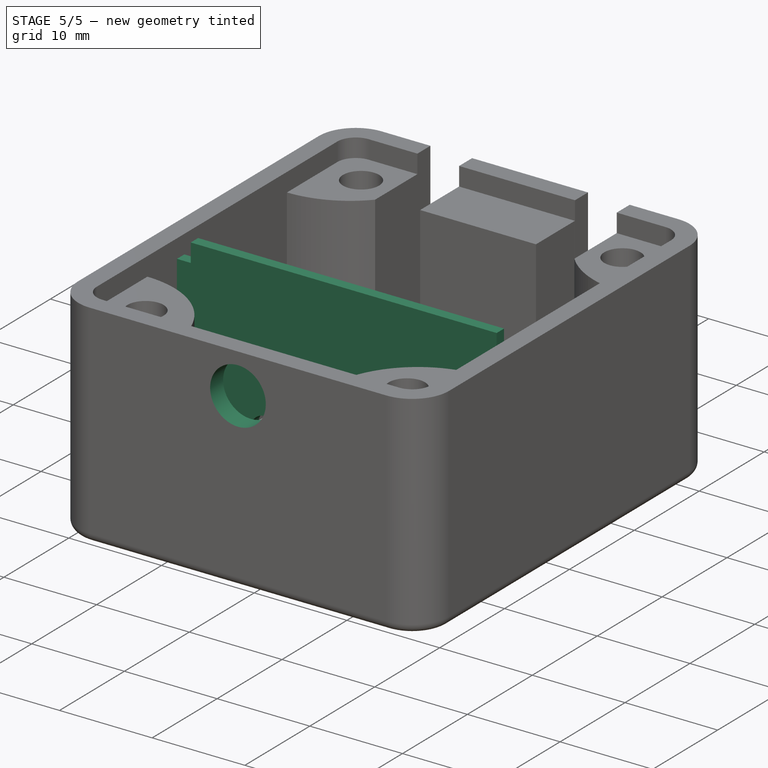
[diagram: stage 5 of 5 — iso view after this stage's code; geometry added in this stage tinted green]
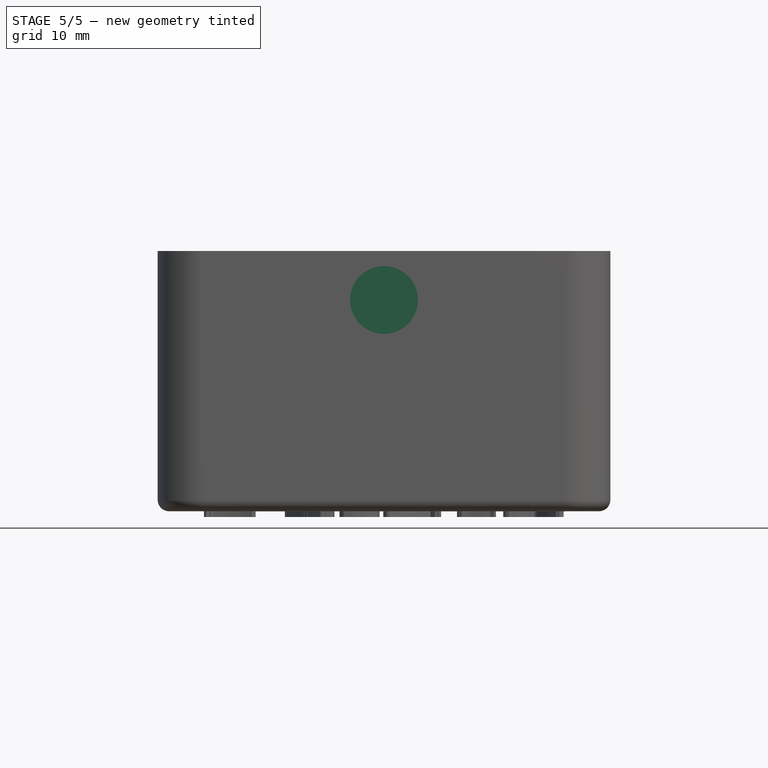
[diagram: stage 5 of 5 — front view after this stage's code; geometry added in this stage tinted green]
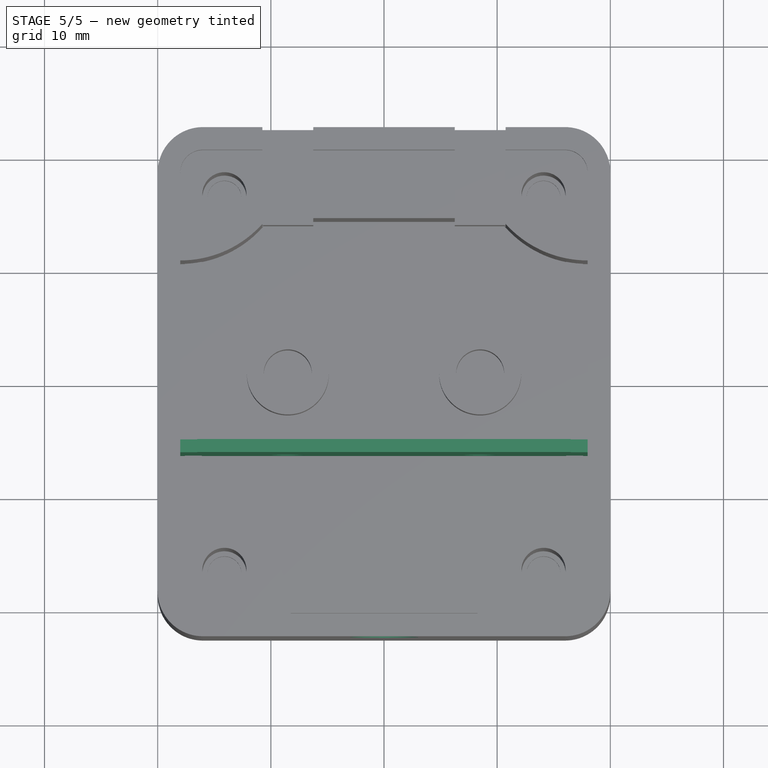
[diagram: stage 5 of 5 — top view after this stage's code; geometry added in this stage tinted green]
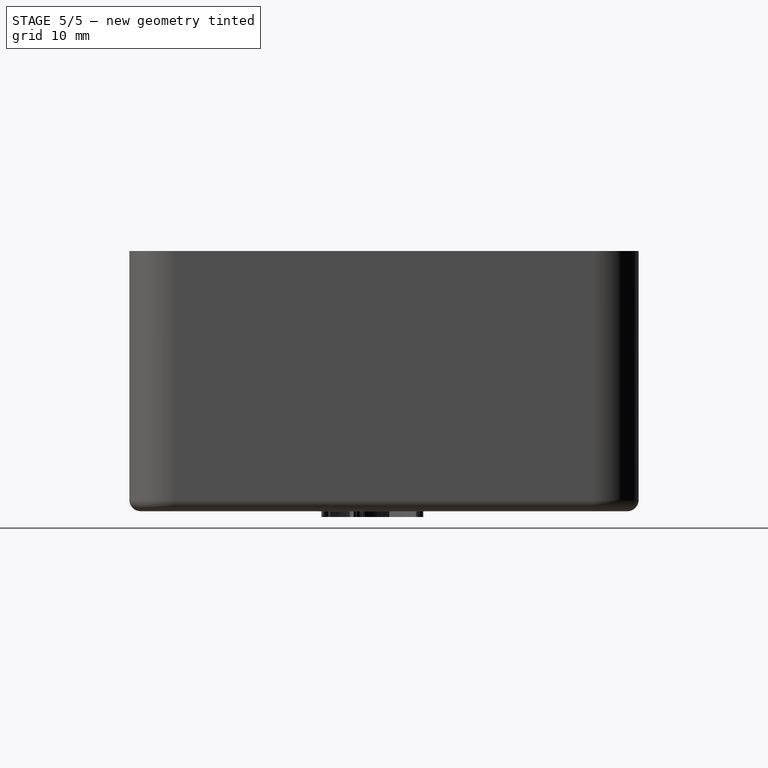
[diagram: stage 5 of 5 — right view after this stage's code; geometry added in this stage tinted green]
FEATURE [Sketcher::SketchObject] Sketch010
  FullyConstrained = true
  MapMode = 5
  Placement = pos=(0,0,2) rot=(0,0,1;0rad)
  Support = -> [Pocket003]
  expr: Constraints[3] = <<p>>.key_lock_diameter
  expr: Constraints[5] = <<p>>.key_lock_diameter + 3
  expr: Constraints[6] = <<p>>.key_spread
  expr: Constraints[7] = <<p>>.key_spread / 2
  expr: Constraints[9] = <<p>>.box_outer_length / 2 - <<p>>.key_lock_recess
  sketch-geometry (4):
    g0: Circle CenterX=-8.5 CenterY=1 CenterZ=0 NormalX=0 NormalY=0 NormalZ=1 AngleXU=0 Radius=2.125
    g1: Circle CenterX=-8.5 CenterY=1 CenterZ=0 NormalX=0 NormalY=0 NormalZ=1 AngleXU=0 Radius=3.625
    g2: Circle CenterX=8.5 CenterY=1 CenterZ=0 NormalX=0 NormalY=0 NormalZ=1 AngleXU=0 Radius=2.125
    g3: Circle CenterX=8.5 CenterY=1 CenterZ=0 NormalX=0 NormalY=0 NormalZ=1 AngleXU=0 Radius=3.625
  constraints (10):
    c: Coincident(g1,g0)
    c: Coincident(g3,g2)
    c: Equal(g0,g2)
    c: Diameter(g0) = 4.25
    c: Equal(g1,g3)
    c: Diameter(g1) = 7.25
    c: DistanceX(g0,g2) = 17
    c: DistanceX(g0,g-1) = 8.5
    c: DistanceY(g0,g2) = 0
    c: DistanceY(g-1,g2) = 1
FEATURE [PartDesign::Pad] Pad006  label="LockPad"
  BaseFeature = -> Pocket003
  Direction = (0,0,1)
  Length = 3.2
  Length2 = 10
  Profile = -> Sketch010
  ReferenceAxis = -> Sketch010 [N_Axis]
  Type = 0
  expr: Length = 4.5 - <<p>>.box_wall_thickness + <<p>>.key_lock_depth
FEATURE [Sketcher::SketchObject] Sketch011
  FullyConstrained = true
  MapMode = 5
  Placement = pos=(0,0,2) rot=(0,0,1;0rad)
  Support = -> [Pad006]
  sketch-geometry (4):
    g0: LineSegment StartX=-18.55 StartY=-5.06 StartZ=0 EndX=18.51 EndY=-5.06 EndZ=0
    g1: LineSegment StartX=18.51 StartY=-5.06 StartZ=0 EndX=18.51 EndY=-6.2 EndZ=0
    g2: LineSegment StartX=18.51 StartY=-6.2 StartZ=0 EndX=-18.55 EndY=-6.2 EndZ=0
    g3: LineSegment StartX=-18.55 StartY=-6.2 StartZ=0 EndX=-18.55 EndY=-5.06 EndZ=0
  constraints (12):
    c: Coincident(g0,g1)
    c: Coincident(g1,g2)
    c: Coincident(g2,g3)
    c: Coincident(g3,g0)
    c: Horizontal(g0)
    c: Horizontal(g2)
    c: Vertical(g1)
    c: Vertical(g3)
    c: DistanceX(g0,g0) = 37.06
    c: DistanceX(g-1,g0) = 18.51
    c: DistanceY(g1,g1) = 1.14
    c: DistanceY(g1,g-1) = 6.2
FEATURE [PartDesign::Pad] Pad007  label="WeightWall"
  BaseFeature = -> Pad006
  Direction = (0,0,1)
  Length = 19
  Length2 = 10
  Profile = -> Sketch011
  ReferenceAxis = -> Sketch011 [N_Axis]
  Type = 0
  expr: Length = <<p>>.lug_depth
FEATURE [Sketcher::SketchObject] Sketch012
  FullyConstrained = true
  MapMode = 5
  Placement = pos=(0,-22.5,0) rot=(1,0,0;1.5708rad)
  Support = -> [Pad007]
  sketch-geometry (1):
    g0: Circle CenterX=0 CenterY=18.67 CenterZ=0 NormalX=0 NormalY=0 NormalZ=1 AngleXU=0 Radius=3
  constraints (3):
    c: PointOnObject(g0,g-2)
    c: Diameter(g0) = 6
    c: DistanceY(g-1,g0) = 18.67
FEATURE [PartDesign::Pocket] Pocket004  label="5WirePocket"
  BaseFeature = -> Pad007
  Direction = (0,1,-2e-16)
  Length = 5
  Length2 = 5
  Profile = -> Sketch012
  ReferenceAxis = -> Sketch012 [N_Axis]
  Type = 0
FEATURE [Sketcher::SketchObject] Sketch013
  FullyConstrained = true
  MapMode = 5
  Placement = pos=(0,-6.2,0) rot=(1,0,0;1.5708rad)
  Support = -> [Pocket004]
  expr: Constraints[3] = 17 / 2
  expr: Constraints[5] = 4.5 - <<p>>.box_wall_thickness + <<p>>.key_lock_depth + 3.5
  sketch-geometry (2):
    g0: Circle CenterX=-8.5 CenterY=6.7 CenterZ=0 NormalX=0 NormalY=0 NormalZ=1 AngleXU=0 Radius=1.5
    g1: Circle CenterX=8.5 CenterY=6.7 CenterZ=0 NormalX=0 NormalY=0 NormalZ=1 AngleXU=0 Radius=1.5
  constraints (6):
    c: Diameter(g0) = 3
    c: Diameter(g1) = 3
    c: DistanceX(g0,g1) = 17
    c: DistanceX(g0,g-1) = 8.5
    c: DistanceY(g0,g1) = 0
    c: DistanceY(g-1,g0) = 6.7
FEATURE [PartDesign::Pocket] Pocket005  label="KeyWiresPockets"
  BaseFeature = -> Pocket004
  Direction = (0,1,-2e-16)
  Length = 5
  Length2 = 5
  Profile = -> Sketch013
  ReferenceAxis = -> Sketch013 [N_Axis]
  Type = 0
FEATURE [Sketcher::SketchObject] Sketch014
  FullyConstrained = true
  MapMode = 5
  Placement = pos=(0,0,21) rot=(0,0,1;0rad)
  Support = -> [Pocket005]
  expr: Constraints[10] = <<p>>.box_inner_width - 3
  sketch-geometry (4):
    g0: LineSegment StartX=-16.5 StartY=-5.07 StartZ=0 EndX=16.5 EndY=-5.07 EndZ=0
    g1: LineSegment StartX=16.5 StartY=-5.07 StartZ=0 EndX=16.5 EndY=-6.21 EndZ=0
    g2: LineSegment StartX=16.5 StartY=-6.21 StartZ=0 EndX=-16.5 EndY=-6.21 EndZ=0
    g3: LineSegment StartX=-16.5 StartY=-6.21 StartZ=0 EndX=-16.5 EndY=-5.07 EndZ=0
  constraints (12):
    c: Coincident(g0,g1)
    c: Coincident(g1,g2)
    c: Coincident(g2,g3)
    c: Coincident(g3,g0)
    c: Horizontal(g0)
    c: Horizontal(g2)
    c: Vertical(g1)
    c: Vertical(g3)
    c: DistanceY(g1,g1) = 1.14
    c: DistanceY(g0,g-1) = 5.07
    c: DistanceX(g0,g0) = 33
    c: DistanceX(g-1,g0) = 16.5
FEATURE [PartDesign::Pad] Pad008  label="RetainingWall"
  BaseFeature = -> Pocket005
  Direction = (0,0,1)
  Length = 2
  Length2 = 10
  Profile = -> Sketch014
  ReferenceAxis = -> Sketch014 [N_Axis]
  Type = 0
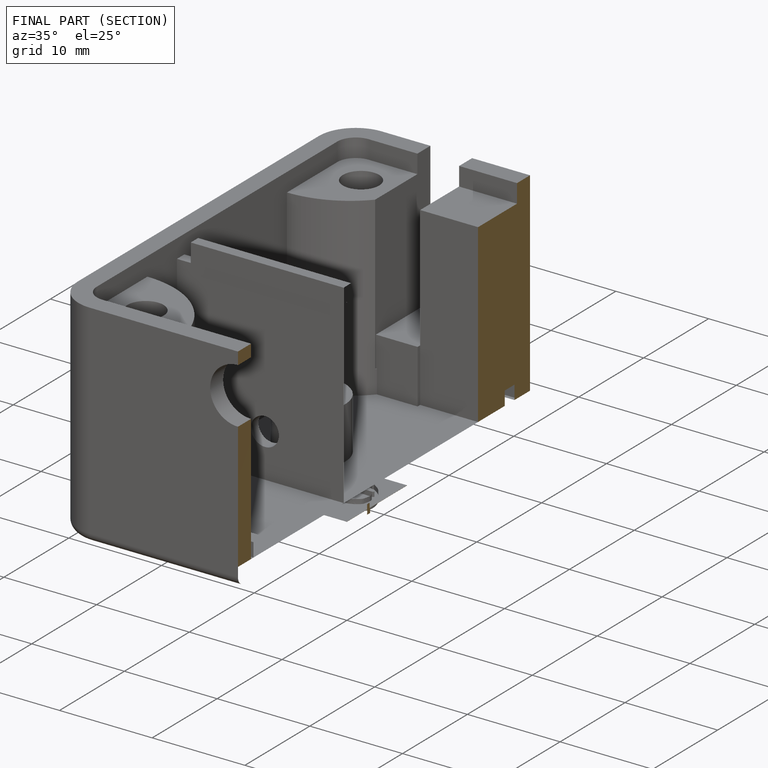
[diagram: finished part — half-section view (interior)]
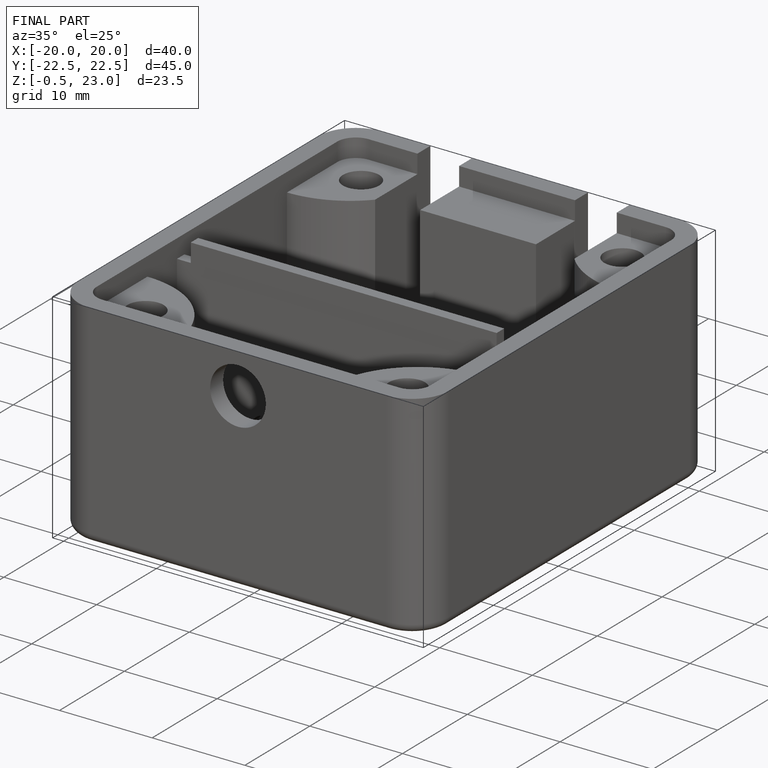
[diagram: finished part — iso view with bounding-box wireframe]
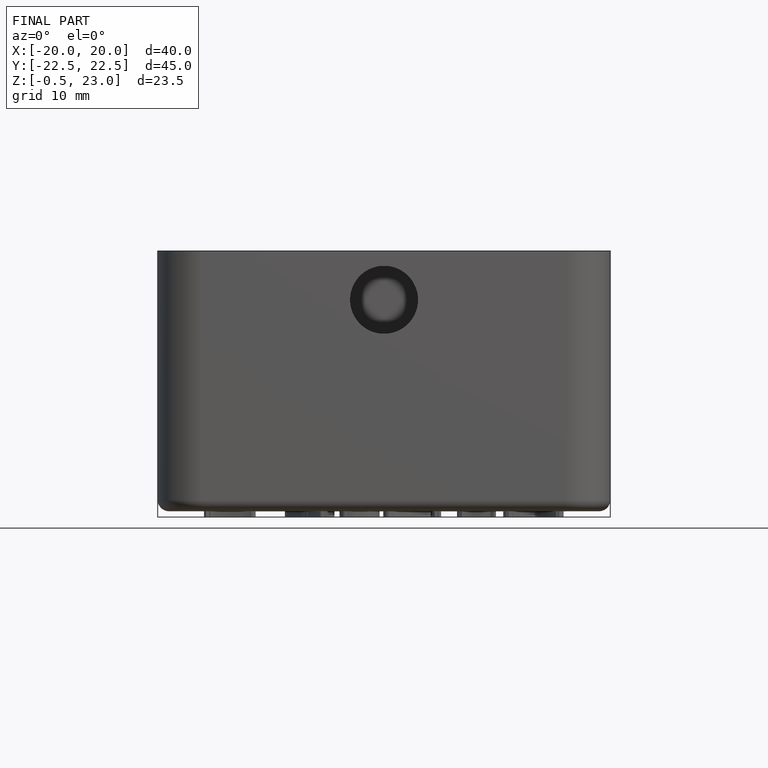
[diagram: finished part — front view with bounding-box wireframe]
